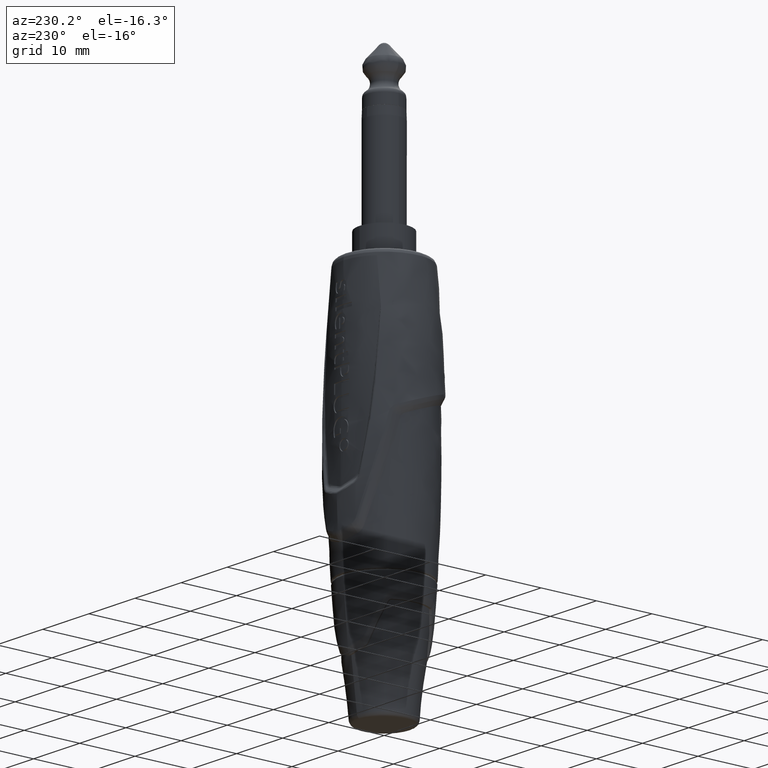
[diagram: clean part render]
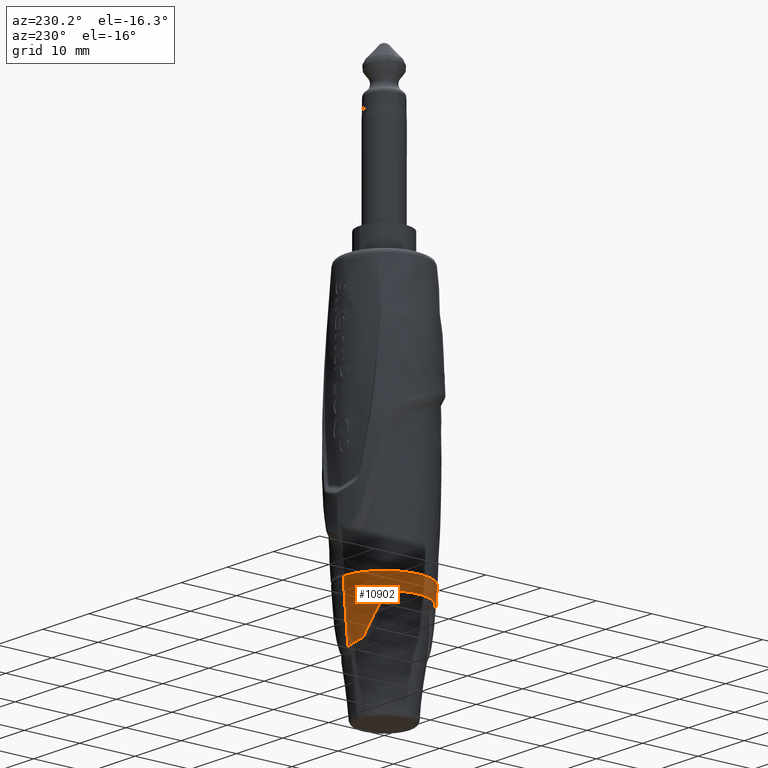
[diagram: same view with one face highlighted and labeled with its STEP entity id]
A machine part, auxiliary view. The second image highlights one B-rep face of the part: STEP entity #10902.
In plain terms, the highlighted face is a freeform B-spline surface patch.
Its self-contained STEP definition (entity closure, byte-faithful):
#2267=CARTESIAN_POINT('',(-1.795137041626E-1,6.551230375487E0,
-7.868317645325E1));
#2268=CARTESIAN_POINT('',(-1.594418108236E-1,6.551275077977E0,
-7.868817333101E1));
#2269=CARTESIAN_POINT('',(-1.193747791567E-1,6.551351278371E0,
-7.869646195170E1));
#2270=CARTESIAN_POINT('',(-5.911703957591E-2,6.551421467214E0,
-7.870386891401E1));
#2271=CARTESIAN_POINT('',(-1.963606222376E-2,6.551436486004E0,
-7.870545679471E1));
#2272=CARTESIAN_POINT('',(-1.463345281959E-12,6.551436499637E0,
-7.870545628656E1));
#2274=CARTESIAN_POINT('',(1.010303952409E-14,0.E0,-6.864869022629E1));
#2275=DIRECTION('',(0.E0,0.E0,-1.E0));
#2276=DIRECTION('',(0.E0,-1.E0,0.E0));
#2277=AXIS2_PLACEMENT_3D('',#2274,#2275,#2276);
#2279=CARTESIAN_POINT('',(-1.903221015351E-12,-6.551436498406E0,
-7.870545625494E1));
#2280=CARTESIAN_POINT('',(-1.963980736822E-2,-6.551436488771E0,
-7.870545662762E1));
#2281=CARTESIAN_POINT('',(-5.912576969670E-2,-6.551421444738E0,
-7.870386851341E1));
#2282=CARTESIAN_POINT('',(-1.193841840172E-1,-6.551351234101E0,
-7.869646070081E1));
#2283=CARTESIAN_POINT('',(-1.594457008817E-1,-6.551275055121E0,
-7.868817221049E1));
#2284=CARTESIAN_POINT('',(-1.795136878375E-1,-6.551230364327E0,
-7.868317638757E1));
#2286=CARTESIAN_POINT('',(-1.795136878375E-1,-6.551230364327E0,
-7.868317638757E1));
#2287=CARTESIAN_POINT('',(-4.424858775375E-1,-6.550644460872E0,
-7.861770394750E1));
#2288=CARTESIAN_POINT('',(-9.715414215900E-1,-6.518923184995E0,
-7.847409271677E1));
#2289=CARTESIAN_POINT('',(-1.763395975806E0,-6.377084023611E0,
-7.822303991792E1));
#2290=CARTESIAN_POINT('',(-2.284911590152E0,-6.217936935285E0,
-7.803193239966E1));
#2291=CARTESIAN_POINT('',(-2.542157609171E0,-6.121819467888E0,
-7.793144810558E1));
#2293=CARTESIAN_POINT('',(-2.542157609171E0,-6.121819467888E0,
-7.793144810558E1));
#2294=CARTESIAN_POINT('',(-2.591151090806E0,-6.103513625580E0,
-7.791230824688E1));
#2295=CARTESIAN_POINT('',(-2.683905523479E0,-6.069750827662E0,
-7.785538856074E1));
#2296=CARTESIAN_POINT('',(-2.812841191987E0,-6.026244743436E0,
-7.771396005446E1));
#2297=CARTESIAN_POINT('',(-2.886080187222E0,-6.004122781398E0,
-7.759422263314E1));
#2298=CARTESIAN_POINT('',(-2.921011173113E0,-5.994294079928E0,
-7.752753733583E1));
#2300=CARTESIAN_POINT('',(-2.921011173113E0,-5.994294079928E0,
-7.752753733583E1));
#2301=CARTESIAN_POINT('',(-3.272533829222E0,-5.895393175994E0,
-7.685634291765E1));
#2302=CARTESIAN_POINT('',(-3.931163132422E0,-5.644339280005E0,
-7.556129050717E1));
#2303=CARTESIAN_POINT('',(-4.788162666958E0,-5.146668735779E0,
-7.378624749906E1));
#2304=CARTESIAN_POINT('',(-5.285208912368E0,-4.743363036315E0,
-7.270727863139E1));
#2305=CARTESIAN_POINT('',(-5.515071559742E0,-4.525919415205E0,
-7.219788275709E1));
#2307=CARTESIAN_POINT('',(-6.166390826096E0,-3.696307799726E0,
-7.148204783912E1));
#2308=CARTESIAN_POINT('',(-6.119726321700E0,-3.774156959142E0,
-7.148204514491E1));
#2309=CARTESIAN_POINT('',(-6.021472494911E0,-3.927640273051E0,
-7.150844116970E1));
#2310=CARTESIAN_POINT('',(-5.854138712928E0,-4.155662742178E0,
-7.164096136725E1));
#2311=CARTESIAN_POINT('',(-5.680038358909E0,-4.361398091772E0,
-7.187042777815E1));
#2312=CARTESIAN_POINT('',(-5.568917979898E0,-4.474983803694E0,
-7.207854186804E1));
#2313=CARTESIAN_POINT('',(-5.515071559742E0,-4.525919415205E0,
-7.219788275709E1));
#2315=CARTESIAN_POINT('',(1.010303952409E-14,0.E0,-7.148204517737E1));
#2316=DIRECTION('',(0.E0,0.E0,-1.E0));
#2317=DIRECTION('',(-8.577092658759E-1,-5.141350165382E-1,0.E0));
#2318=AXIS2_PLACEMENT_3D('',#2315,#2316,#2317);
#2320=CARTESIAN_POINT('',(-5.515071799190E0,4.525919616926E0,
-7.219788278744E1));
#2321=CARTESIAN_POINT('',(-5.568883245463E0,4.475020131129E0,
-7.207861153472E1));
#2322=CARTESIAN_POINT('',(-5.679939871663E0,4.361501300920E0,
-7.187059801642E1));
#2323=CARTESIAN_POINT('',(-5.853971177955E0,4.155870558058E0,
-7.164115139719E1));
#2324=CARTESIAN_POINT('',(-6.021262290636E0,3.927949018970E0,
-7.150854905539E1));
#2325=CARTESIAN_POINT('',(-6.119646386235E0,3.774291410539E0,
-7.148204097415E1));
#2326=CARTESIAN_POINT('',(-6.166390789280E0,3.696307779932E0,
-7.148204782890E1));
#2328=CARTESIAN_POINT('',(-5.515071799190E0,4.525919616926E0,
-7.219788278744E1));
#2329=CARTESIAN_POINT('',(-5.285208817718E0,4.743363502253E0,
-7.270727999881E1));
#2330=CARTESIAN_POINT('',(-4.788161247949E0,5.146669613559E0,
-7.378625021312E1));
#2331=CARTESIAN_POINT('',(-3.931161614058E0,5.644340000102E0,
-7.556129357064E1));
#2332=CARTESIAN_POINT('',(-3.272533175664E0,5.895393357067E0,
-7.685634424367E1));
#2333=CARTESIAN_POINT('',(-2.921011201947E0,5.994294069115E0,
-7.752753735112E1));
#2335=CARTESIAN_POINT('',(-2.921011201947E0,5.994294069115E0,
-7.752753735112E1));
#2336=CARTESIAN_POINT('',(-2.886080893436E0,6.004122600104E0,
-7.759422111137E1));
#2337=CARTESIAN_POINT('',(-2.812844069699E0,6.026243731857E0,
-7.771395726604E1));
#2338=CARTESIAN_POINT('',(-2.683901066468E0,6.069752360608E0,
-7.785539288234E1));
#2339=CARTESIAN_POINT('',(-2.591148852209E0,6.103514479488E0,
-7.791230915745E1));
#2340=CARTESIAN_POINT('',(-2.542157591242E0,6.121819500819E0,
-7.793144803137E1));
#2342=CARTESIAN_POINT('',(-2.542157591242E0,6.121819500819E0,
-7.793144803137E1));
#2343=CARTESIAN_POINT('',(-2.284906889716E0,6.217938763146E0,
-7.803193444839E1));
#2344=CARTESIAN_POINT('',(-1.763385134196E0,6.377087394486E0,
-7.822304687682E1));
#2345=CARTESIAN_POINT('',(-9.715057424310E-1,6.518927211598E0,
-7.847410191171E1));
#2346=CARTESIAN_POINT('',(-4.424702349268E-1,6.550645698250E0,
-7.861770712554E1));
#2347=CARTESIAN_POINT('',(-1.795137041626E-1,6.551230375487E0,
-7.868317645325E1));
#2472=CARTESIAN_POINT('',(-2.379534312149E-14,2.768013003356E2,
-5.004128554270E1));
#2473=DIRECTION('',(-1.E0,0.E0,0.E0));
#2474=DIRECTION('',(0.E0,-9.949221926772E-1,-1.006470591639E-1));
#2475=AXIS2_PLACEMENT_3D('',#2472,#2473,#2474);
#2482=CARTESIAN_POINT('',(1.010303952409E-14,-2.768013003356E2,
-5.004128554270E1));
#2483=DIRECTION('',(1.E0,0.E0,0.E0));
#2484=DIRECTION('',(0.E0,9.949221926776E-1,-1.006470591606E-1));
#2485=AXIS2_PLACEMENT_3D('',#2482,#2483,#2484);
#2487=CARTESIAN_POINT('',(-1.463345281959E-12,6.551436499637E0,
-7.870545628656E1));
#8249=VERTEX_POINT('',#2487);
#8251=VERTEX_POINT('',#2267);
#8253=VERTEX_POINT('',#2342);
#8255=VERTEX_POINT('',#2335);
#8257=VERTEX_POINT('',#2328);
#8259=CARTESIAN_POINT('',(-6.166391001297E0,-3.696307904748E0,
-7.148204517737E1));
#8260=CARTESIAN_POINT('',(-6.166391000296E0,3.696307906419E0,
-7.148204517737E1));
#8261=VERTEX_POINT('',#8259);
#8262=VERTEX_POINT('',#8260);
#8267=VERTEX_POINT('',#2300);
#8268=VERTEX_POINT('',#2305);
#8271=VERTEX_POINT('',#2293);
#8273=VERTEX_POINT('',#2286);
#8275=VERTEX_POINT('',#2279);
#8295=CARTESIAN_POINT('',(0.E0,-7.389080663179E0,-6.864869022629E1));
#8296=CARTESIAN_POINT('',(1.010303952409E-14,7.389080663179E0,
-6.864869022629E1));
#8297=VERTEX_POINT('',#8295);
#8298=VERTEX_POINT('',#8296);
#10856=CARTESIAN_POINT('',(1.010303952409E-14,6.551436501972E0,
-7.870545634786E1));
#10857=CARTESIAN_POINT('',(1.010303952409E-14,6.890034891029E0,
-7.535832375923E1));
#10858=CARTESIAN_POINT('',(1.010303952409E-14,7.169278831365E0,
-7.200571757049E1));
#10859=CARTESIAN_POINT('',(1.010303952409E-14,7.389080663179E0,
-6.864869022629E1));
#10860=CARTESIAN_POINT('',(-1.310287300394E1,6.551436501972E0,
-7.870545634786E1));
#10861=CARTESIAN_POINT('',(-1.378006978206E1,6.890034891029E0,
-7.535832375923E1));
#10862=CARTESIAN_POINT('',(-1.433855766273E1,7.169278831365E0,
-7.200571757049E1));
#10863=CARTESIAN_POINT('',(-1.477816132636E1,7.389080663179E0,
-6.864869022629E1));
#10864=CARTESIAN_POINT('',(-1.310287300394E1,-6.551436501972E0,
-7.870545634786E1));
#10865=CARTESIAN_POINT('',(-1.378006978206E1,-6.890034891029E0,
-7.535832375923E1));
#10866=CARTESIAN_POINT('',(-1.433855766273E1,-7.169278831365E0,
-7.200571757049E1));
#10867=CARTESIAN_POINT('',(-1.477816132636E1,-7.389080663179E0,
-6.864869022629E1));
#10868=CARTESIAN_POINT('',(0.E0,-6.551436501972E0,-7.870545634786E1));
#10869=CARTESIAN_POINT('',(0.E0,-6.890034891029E0,-7.535832375923E1));
#10870=CARTESIAN_POINT('',(0.E0,-7.169278831365E0,-7.200571757049E1));
#10871=CARTESIAN_POINT('',(0.E0,-7.389080663179E0,-6.864869022629E1));
#10872=(BOUNDED_SURFACE()B_SPLINE_SURFACE(3,3,((#10856,#10857,#10858,#10859),(
#10860,#10861,#10862,#10863),(#10864,#10865,#10866,#10867),(#10868,#10869,
#10870,#10871)),.UNSPECIFIED.,.F.,.F.,.F.)B_SPLINE_SURFACE_WITH_KNOTS((4,4),(4,
4),(0.E0,1.E0),(0.E0,1.E0),.UNSPECIFIED.)GEOMETRIC_REPRESENTATION_ITEM()RATIONAL_B_SPLINE_SURFACE(((2.000156971500E0,1.999947676167E0,1.999947676167E0,
2.000156971500E0),(6.667189904999E-1,6.666492253889E-1,6.666492253889E-1,
6.667189904999E-1),(6.667189904999E-1,6.666492253889E-1,6.666492253889E-1,
6.667189904999E-1),(2.000156971500E0,1.999947676167E0,1.999947676167E0,
2.000156971500E0)))REPRESENTATION_ITEM('')SURFACE());
#10874=ORIENTED_EDGE('',*,*,#10873,.T.);
#10876=ORIENTED_EDGE('',*,*,#10875,.T.);
#10877=ORIENTED_EDGE('',*,*,#10850,.F.);
#10879=ORIENTED_EDGE('',*,*,#10878,.F.);
#10881=ORIENTED_EDGE('',*,*,#10880,.T.);
#10883=ORIENTED_EDGE('',*,*,#10882,.T.);
#10885=ORIENTED_EDGE('',*,*,#10884,.T.);
#10887=ORIENTED_EDGE('',*,*,#10886,.T.);
#10889=ORIENTED_EDGE('',*,*,#10888,.F.);
#10891=ORIENTED_EDGE('',*,*,#10890,.T.);
#10893=ORIENTED_EDGE('',*,*,#10892,.F.);
#10895=ORIENTED_EDGE('',*,*,#10894,.T.);
#10897=ORIENTED_EDGE('',*,*,#10896,.T.);
#10899=ORIENTED_EDGE('',*,*,#10898,.T.);
#10900=EDGE_LOOP('',(#10874,#10876,#10877,#10879,#10881,#10883,#10885,#10887,
#10889,#10891,#10893,#10895,#10897,#10899));
#10901=FACE_OUTER_BOUND('',#10900,.F.);
#10902=ADVANCED_FACE('',(#10901),#10872,.T.);
#2273=B_SPLINE_CURVE_WITH_KNOTS('',3,(#2267,#2268,#2269,#2270,#2271,#2272),
.UNSPECIFIED.,.F.,.F.,(4,1,1,4),(0.E0,3.333333333333E-1,6.666666666667E-1,1.E0),
.UNSPECIFIED.);
#2278=CIRCLE('',#2277,7.389080663179E0);
#2285=B_SPLINE_CURVE_WITH_KNOTS('',3,(#2279,#2280,#2281,#2282,#2283,#2284),
.UNSPECIFIED.,.F.,.F.,(4,1,1,4),(0.E0,3.333333333333E-1,6.666666666667E-1,1.E0),
.UNSPECIFIED.);
#2292=B_SPLINE_CURVE_WITH_KNOTS('',3,(#2286,#2287,#2288,#2289,#2290,#2291),
.UNSPECIFIED.,.F.,.F.,(4,1,1,4),(0.E0,3.333333333333E-1,6.666666666667E-1,1.E0),
.UNSPECIFIED.);
#2299=B_SPLINE_CURVE_WITH_KNOTS('',3,(#2293,#2294,#2295,#2296,#2297,#2298),
.UNSPECIFIED.,.F.,.F.,(4,1,1,4),(0.E0,3.333333333333E-1,6.666666666667E-1,1.E0),
.UNSPECIFIED.);
#2306=B_SPLINE_CURVE_WITH_KNOTS('',3,(#2300,#2301,#2302,#2303,#2304,#2305),
.UNSPECIFIED.,.F.,.F.,(4,1,1,4),(0.E0,3.333333333333E-1,6.666666666667E-1,1.E0),
.UNSPECIFIED.);
#2314=B_SPLINE_CURVE_WITH_KNOTS('',3,(#2307,#2308,#2309,#2310,#2311,#2312,
#2313),.UNSPECIFIED.,.F.,.F.,(4,1,1,1,4),(0.E0,2.5E-1,5.E-1,7.5E-1,1.E0),
.UNSPECIFIED.);
#2319=CIRCLE('',#2318,7.189372024564E0);
#2327=B_SPLINE_CURVE_WITH_KNOTS('',3,(#2320,#2321,#2322,#2323,#2324,#2325,
#2326),.UNSPECIFIED.,.F.,.F.,(4,1,1,1,4),(0.E0,2.5E-1,5.E-1,7.5E-1,1.E0),
.UNSPECIFIED.);
#2334=B_SPLINE_CURVE_WITH_KNOTS('',3,(#2328,#2329,#2330,#2331,#2332,#2333),
.UNSPECIFIED.,.F.,.F.,(4,1,1,4),(0.E0,3.333333333333E-1,6.666666666667E-1,1.E0),
.UNSPECIFIED.);
#2341=B_SPLINE_CURVE_WITH_KNOTS('',3,(#2335,#2336,#2337,#2338,#2339,#2340),
.UNSPECIFIED.,.F.,.F.,(4,1,1,4),(0.E0,3.333333333333E-1,6.666666666667E-1,1.E0),
.UNSPECIFIED.);
#2348=B_SPLINE_CURVE_WITH_KNOTS('',3,(#2342,#2343,#2344,#2345,#2346,#2347),
.UNSPECIFIED.,.F.,.F.,(4,1,1,4),(0.E0,3.333333333333E-1,6.666666666667E-1,1.E0),
.UNSPECIFIED.);
#2476=CIRCLE('',#2475,2.847988907304E2);
#2486=CIRCLE('',#2485,2.847988907304E2);
#10850=EDGE_CURVE('',#8297,#8298,#2278,.T.);
#10873=EDGE_CURVE('',#8251,#8249,#2273,.T.);
#10875=EDGE_CURVE('',#8249,#8298,#2486,.T.);
#10878=EDGE_CURVE('',#8275,#8297,#2476,.T.);
#10880=EDGE_CURVE('',#8275,#8273,#2285,.T.);
#10882=EDGE_CURVE('',#8273,#8271,#2292,.T.);
#10884=EDGE_CURVE('',#8271,#8267,#2299,.T.);
#10886=EDGE_CURVE('',#8267,#8268,#2306,.T.);
#10888=EDGE_CURVE('',#8261,#8268,#2314,.T.);
#10890=EDGE_CURVE('',#8261,#8262,#2319,.T.);
#10892=EDGE_CURVE('',#8257,#8262,#2327,.T.);
#10894=EDGE_CURVE('',#8257,#8255,#2334,.T.);
#10896=EDGE_CURVE('',#8255,#8253,#2341,.T.);
#10898=EDGE_CURVE('',#8253,#8251,#2348,.T.);